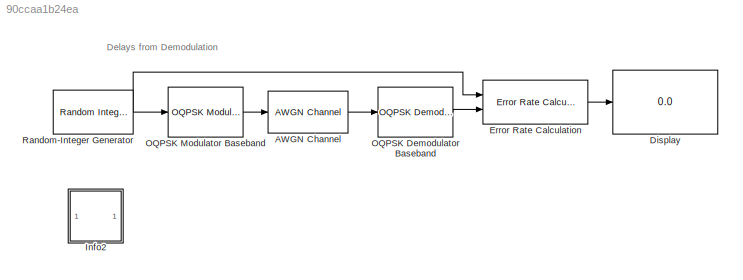
MODEL slx_90ccaa1b24ea
KIND model
BLOCK [Reference] AWGN Channel  REF=commchan3/AWGN
Channel
  EbNodB = 10
  EsNodB = 6
  InputProcessing = Columns as channels (frame based)
  Ports = [1, 1]
  Ps = 1
  SNRdB = 10
  SourceBlock = commchan3/AWGN\nChannel
  SourceType = AWGN Channel
  Tsym = 1
  UserDataPersistent = on
  bitsPerSym = 1
  noiseMode = Signal to noise ratio  (Es/No)
  seed = 67
  variance = 1
BLOCK [Display] Display
  Decimation = 1
  Ports = [1]
BLOCK [Reference] Error Rate Calculation  REF=commsink2/Error Rate
Calculation
  N = 1
  PMode = Port
  Ports = [2, 1]
  RsMode2 = off
  SourceBlock = commsink2/Error Rate\nCalculation
  SourceType = Error Rate Calculation
  WsName = ErrorVec
  cp_mode = Entire frame
  maxBits = 1e6
  numErr = 100
  st_delay = 0
  stop = off
  subframe = []
BLOCK [SubSystem] Info2
  AncestorBlock = commblksprivate/Info
  OpenFcn = helpview([docroot '/toolbox/comm/comm.map'], 'doc_oqpsk_modulation_delay')
  Ports = []
  RequestExecContextInheritance = off
BLOCK [Reference] OQPSK Demodulator Baseband  REF=commdigbbndpm3/OQPSK
Demodulator
Baseband
  OutType = Integer
  Ph = 0
  Ports = [1, 1]
  RateOptions = Allow multirate processing
  SourceBlock = commdigbbndpm3/OQPSK\nDemodulator\nBaseband
  SourceType = OQPSK Demodulator Baseband
  UserDataPersistent = on
  accumFracLength = 15
  accumMode = Inherit via internal rule
  accumWordLength = 32
  derotateFactorDTMode = Same word length as input
  derotateFactorWordLen = 16
  mappingInputFracLength = 15
  mappingInputMode = Same as accumulator
  mappingInputWordLength = 32
  outDtype1 = Inherit via internal rule
  outDtype2 = double
  overflowMode = Wrap
  roundingMode = Floor
BLOCK [Reference] OQPSK Modulator Baseband  REF=commdigbbndpm3/OQPSK
Modulator
Baseband
  InType = Integer
  Ph = 0
  Ports = [1, 1]
  RateOptions = Allow multirate processing
  SourceBlock = commdigbbndpm3/OQPSK\nModulator\nBaseband
  SourceType = OQPSK Modulator Baseband
  UserDataPersistent = on
  outDtype = double
  outFracLen = 15
  outFracLenMode = Best precision
  outUDDataType = sfix(16)
  outWordLen = 16
BLOCK [Reference] Random-Integer Generator  REF=commrandsrc2/Random Integer
Generator
  Ports = [0, 1]
  SourceBlock = commrandsrc2/Random Integer\nGenerator
  SourceType = Random Integer Generator
  Ts = 1
  frameBased = off
  mul = 4
  orient = off
  outDataType = double
  sampPerFrame = 1
  seed = 10711
ANNOTATION (root): Delays from Demodulation
LINE AWGN Channel:1 -> OQPSK Demodulator Baseband:1
LINE Error Rate Calculation:1 -> Display:1
LINE OQPSK Demodulator Baseband:1 -> Error Rate Calculation:2
LINE OQPSK Modulator Baseband:1 -> AWGN Channel:1
NET Random-Integer Generator:1 -> Error Rate Calculation:1, OQPSK Modulator Baseband:1
note: NET lines group one-source signal fan-out (src -> all destinations, sorted); 1:1 wires keep LINE
